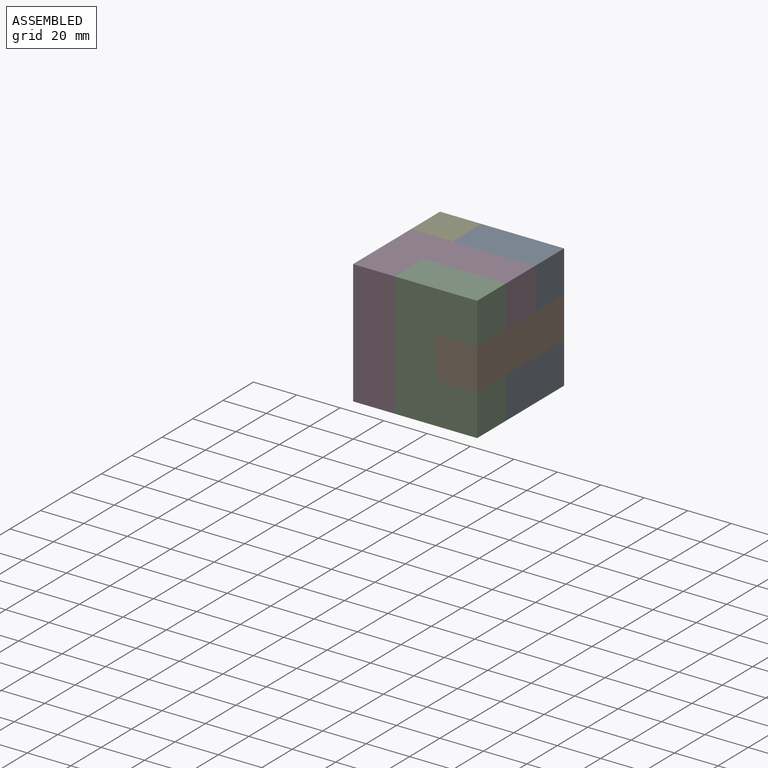
[diagram: assembled view]
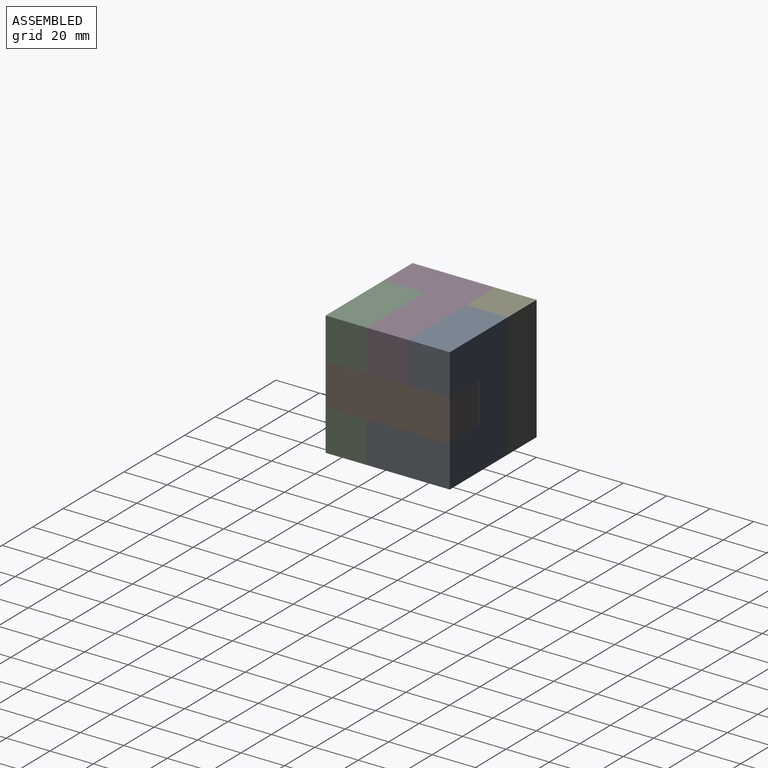
[diagram: assembled view, second angle]
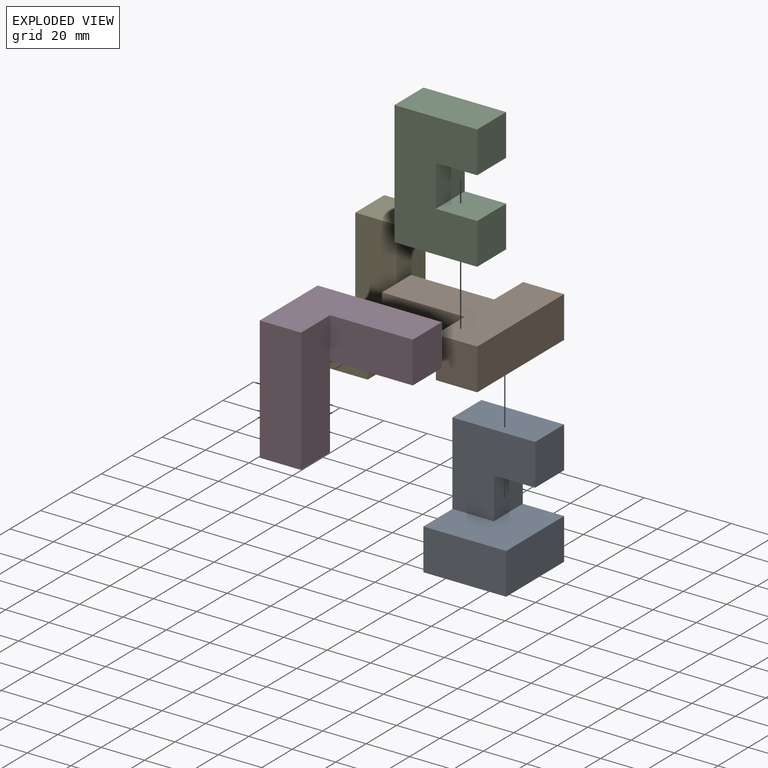
[diagram: exploded view]
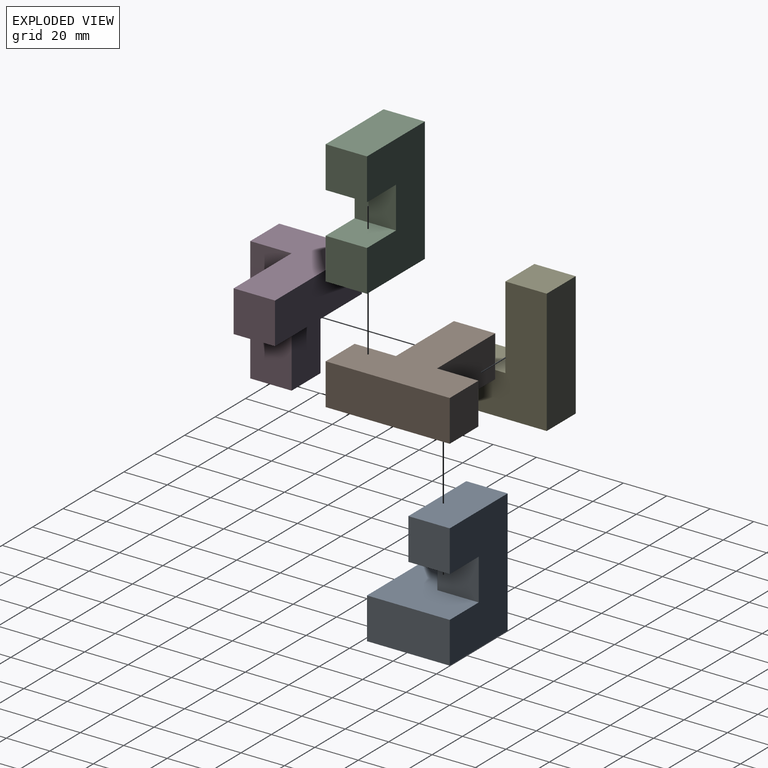
[diagram: exploded view, second angle]
ASSEMBLY  parts=5 mates=4
PART A: 11 faces, bbox 38.1x38.1x57.2 mm
  f0: plane 38.1x19.05mm, normal (0,0,1), area 725.8mm2, adj f4,f5,f9,f10
  f1: plane 19.05x19.05mm, normal (1,0,0), area 362.9mm2, adj f2,f3,f9,f10
  f2: plane 19.05x19.05mm, normal (0,0,-1), area 362.9mm2, adj f1,f4,f9,f10
  f3: plane 38.1x38.1mm, normal (0,0,1), area 1088.7mm2, adj f1,f5,f7,f8,f9,f10
  f4: plane 19.05x19.05mm, normal (1,0,0), area 362.9mm2, adj f0,f2,f9,f10
  f5: plane 57.15x38.1mm, normal (-1,0,0), area 1451.6mm2, adj f0,f3,f6,f8,f9,f10
  f6: plane 38.1x38.1mm, normal (0,0,-1), area 1451.6mm2, adj f5,f7,f8,f9
  f7: plane 38.1x19.05mm, normal (1,0,0), area 725.8mm2, adj f3,f6,f8,f9
  f8: plane 38.1x19.05mm, normal (0,-1,0), area 725.8mm2, adj f3,f5,f6,f7
  f9: plane 57.15x38.1mm, normal (0,1,0), area 1814.5mm2, adj f0,f1,f2,f3,f4,f5,f6,f7
  f10: plane 38.1x38.1mm, normal (0,-1,0), area 1088.7mm2, adj f0,f1,f2,f3,f4,f5
PART B: 10 faces, bbox 57.2x19.1x57.2 mm
  f0: plane 38.1x19.05mm, normal (-1,0,0), area 725.8mm2, adj f1,f7,f8,f9
  f1: plane 19.05x19.05mm, normal (0,0,1), area 362.9mm2, adj f0,f2,f8,f9
  f2: plane 19.05x19.05mm, normal (-1,0,0), area 362.9mm2, adj f1,f3,f8,f9
  f3: plane 57.15x19.05mm, normal (0,0,-1), area 1088.7mm2, adj f2,f4,f8,f9
  f4: plane 19.05x18.87mm, normal (1,0,0), area 359.5mm2, adj f3,f5,f8,f9
  f5: plane 19.05x19.05mm, normal (0,0,1), area 362.9mm2, adj f4,f6,f8,f9
  f6: plane 38.24x19.05mm, normal (1,0,0), area 728.5mm2, adj f5,f7,f8,f9
  f7: plane 19.05x19.05mm, normal (0,0,1), area 362.9mm2, adj f0,f6,f8,f9
  f8: plane 57.15x57.15mm, normal (0,-1,0), area 1811.5mm2, adj f0,f1,f2,f3,f4,f5,f6,f7
  f9: plane 57.15x57.15mm, normal (0,1,0), area 1811.5mm2, adj f0,f1,f2,f3,f4,f5,f6,f7
PART C: 10 faces, bbox 38.1x19.1x57.2 mm
  f0: plane 38.1x19.05mm, normal (0,0,-1), area 725.8mm2, adj f1,f7,f8,f9
  f1: plane 19.05x19.05mm, normal (1,0,0), area 362.9mm2, adj f0,f2,f8,f9
  f2: plane 19.05x19.05mm, normal (0,0,1), area 362.9mm2, adj f1,f3,f8,f9
  f3: plane 19.05x19.05mm, normal (1,0,0), area 362.9mm2, adj f2,f4,f8,f9
  f4: plane 19.05x19.05mm, normal (0,0,-1), area 362.9mm2, adj f3,f5,f8,f9
  f5: plane 19.05x19.05mm, normal (1,0,0), area 362.9mm2, adj f4,f6,f8,f9
  f6: plane 38.1x19.05mm, normal (0,0,1), area 725.8mm2, adj f5,f7,f8,f9
  f7: plane 57.15x19.05mm, normal (-1,0,0), area 1088.7mm2, adj f0,f6,f8,f9
  f8: plane 57.15x38.1mm, normal (0,-1,0), area 1814.5mm2, adj f0,f1,f2,f3,f4,f5,f6,f7
  f9: plane 57.15x38.1mm, normal (0,1,0), area 1814.5mm2, adj f0,f1,f2,f3,f4,f5,f6,f7
PART D: 10 faces, bbox 38.1x57.2x57.2 mm
  f0: plane 57.15x38.1mm, normal (0,0,-1), area 1451.6mm2, adj f1,f3,f4,f5,f6,f7
  f1: plane 57.15x19.05mm, normal (1,0,0), area 1088.7mm2, adj f0,f5,f7,f9
  f2: plane 57.15x19.05mm, normal (0,0,1), area 1088.7mm2, adj f3,f4,f5,f6,f8
  f3: plane 19.05x19.05mm, normal (0,-1,0), area 362.9mm2, adj f0,f2,f4,f6
  f4: plane 57.15x19.05mm, normal (-1,0,0), area 1088.7mm2, adj f0,f2,f3,f5
  f5: plane 57.15x38.1mm, normal (0,1,0), area 1451.6mm2, adj f0,f1,f2,f4,f8,f9
  f6: plane 38.1x19.05mm, normal (1,0,0), area 725.8mm2, adj f0,f2,f3,f7
  f7: plane 57.15x19.05mm, normal (0,-1,0), area 1088.7mm2, adj f0,f1,f6,f8,f9
  f8: plane 38.1x19.05mm, normal (-1,0,0), area 725.8mm2, adj f2,f5,f7,f9
  f9: plane 19.05x19.05mm, normal (0,0,1), area 362.9mm2, adj f1,f5,f7,f8
PART E: 8 faces, bbox 38.1x19.1x57.2 mm
  f0: plane 38.1x19.05mm, normal (1,0,0), area 725.8mm2, adj f1,f5,f6,f7
  f1: plane 19.05x19.05mm, normal (0,0,1), area 362.9mm2, adj f0,f2,f6,f7
  f2: plane 57.15x19.05mm, normal (-1,0,0), area 1088.7mm2, adj f1,f3,f6,f7
  f3: plane 38.1x19.05mm, normal (0,0,-1), area 725.8mm2, adj f2,f4,f6,f7
  f4: plane 19.05x19.05mm, normal (1,0,0), area 362.9mm2, adj f3,f5,f6,f7
  f5: plane 19.05x19.05mm, normal (0,0,1), area 362.9mm2, adj f0,f4,f6,f7
  f6: plane 57.15x38.1mm, normal (0,-1,0), area 1451.6mm2, adj f0,f1,f2,f3,f4,f5
  f7: plane 57.15x38.1mm, normal (0,1,0), area 1451.6mm2, adj f0,f1,f2,f3,f4,f5
PLACE A t=(168.5,199.42,35.98)mm
PLACE B rot(axis=(-0.58,-0.58,0.58),120deg) t=(187.55,180.37,55.03)mm
PLACE C t=(149.45,161.32,35.98)mm
PLACE D rot(axis=(0.58,0.58,0.58),120deg) t=(130.4,180.37,93.13)mm
PLACE E rot(axis=(0,0,-1),90deg) t=(149.45,180.37,35.98)mm
MATE parallel C.f4 <-> B.f8  axis (0,0,-1) through (187.55,142.27,74.08)mm
MATE parallel D.f1 <-> E.f0  axis (0,1,0) through (130.4,180.37,93.13)mm
MATE parallel E.f5 <-> B.f9  axis (0,0,1) through (130.4,161.32,55.03)mm
MATE parallel A.f2 <-> B.f8  axis (0,0,-1) through (187.55,199.42,74.08)mm
